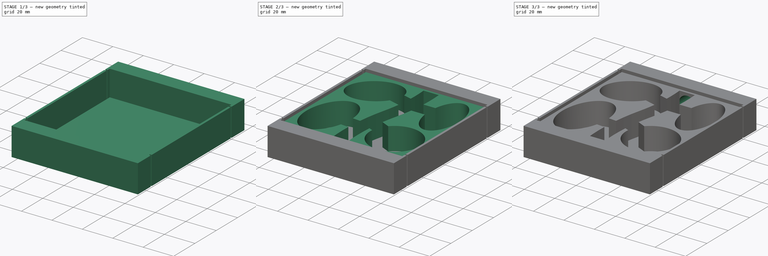
[diagram: build sequence overview — one tinted view per stage of 3, left to right]
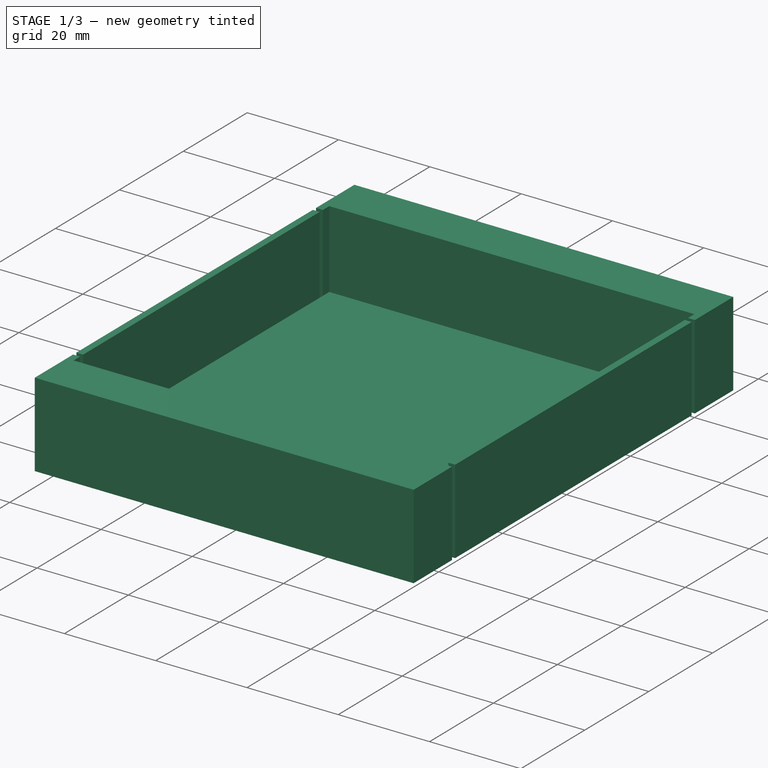
[diagram: stage 1 of 3 — iso view after this stage's code; geometry added in this stage tinted green]
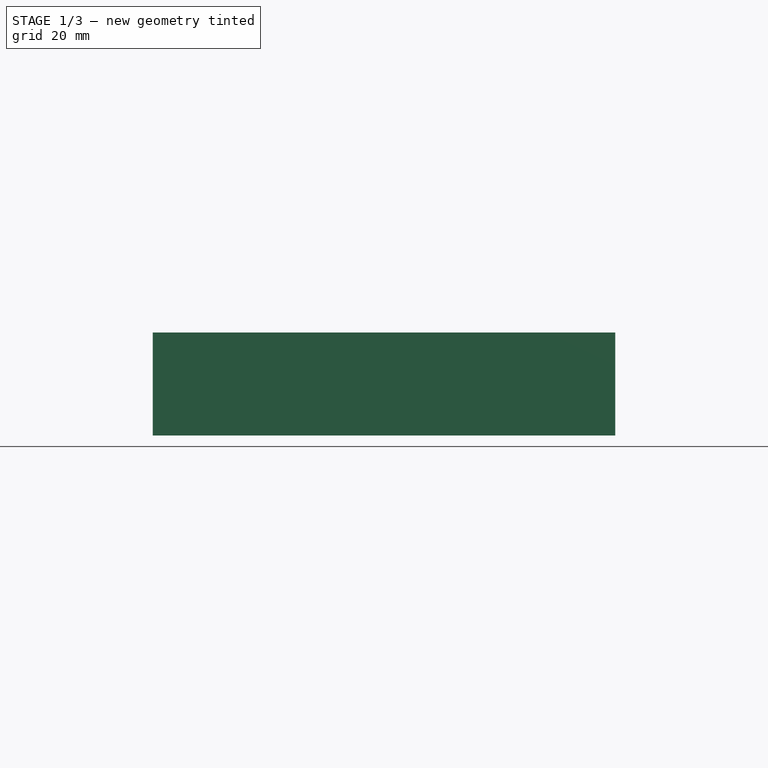
[diagram: stage 1 of 3 — front view after this stage's code; geometry added in this stage tinted green]
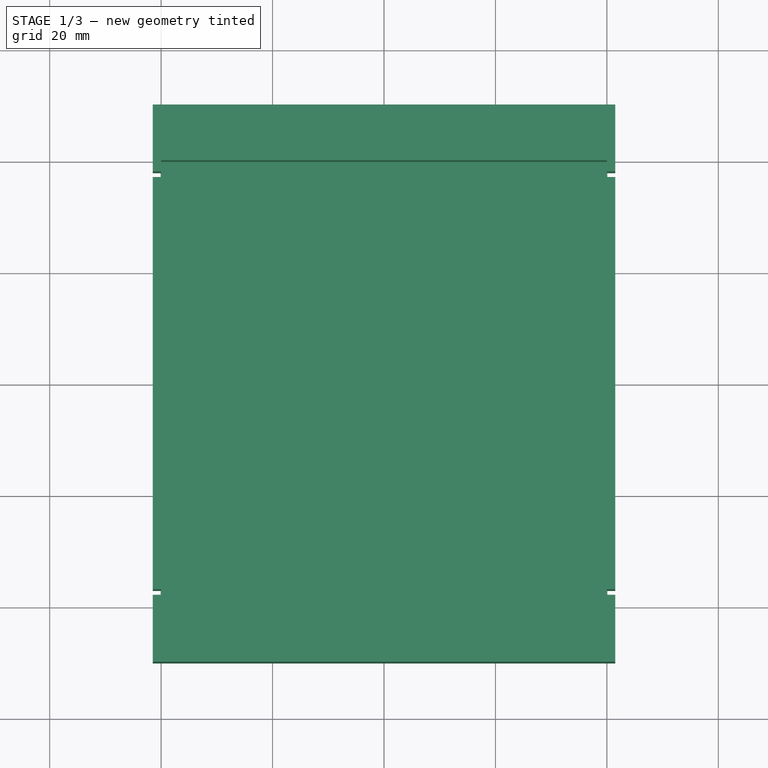
[diagram: stage 1 of 3 — top view after this stage's code; geometry added in this stage tinted green]
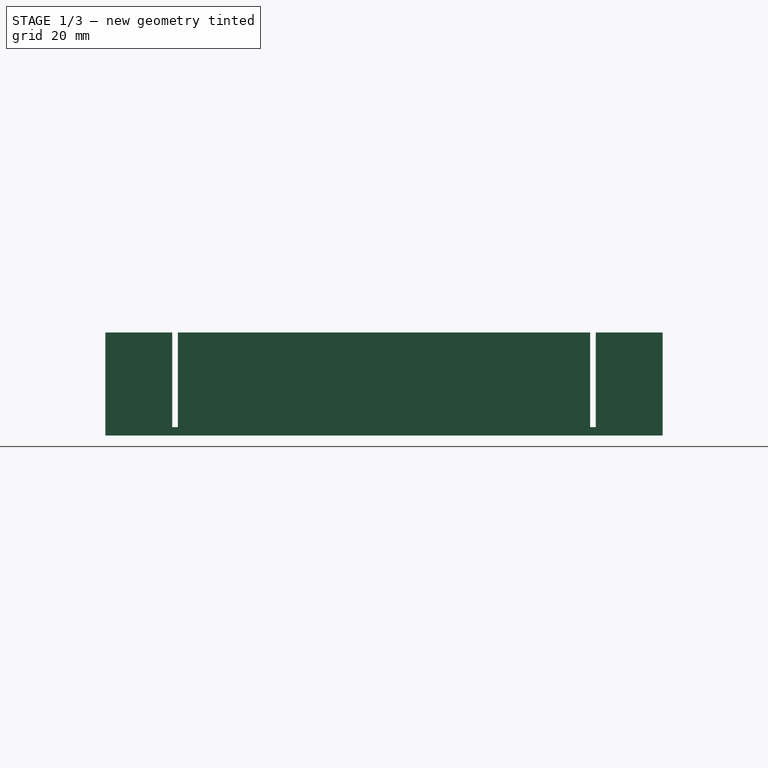
[diagram: stage 1 of 3 — right view after this stage's code; geometry added in this stage tinted green]
FCSTD DOCUMENT  (FreeCAD 0.17R13509 (Git))
Label: test
License: All rights reserved
LicenseURL: http://en.wikipedia.org/wiki/All_rights_reserved
objects: Sketcher::SketchObject×5, PartDesign::Pad×3, PartDesign::Hole×2, PartDesign::Body×1
note: 16 computed .brp shape members not serialized (recipe doc carries the construction recipe); baked Part::Feature solids carry a one-line shape summary decoded from their .brp

FEATURE [Sketcher::SketchObject] Sketch  label="Base"
  MapMode = 5
  Support = -> [XY_Plane]
  sketch-geometry (4):
    g0: LineSegment StartX=0 StartY=0 StartZ=0 EndX=80 EndY=0 EndZ=0
    g1: LineSegment StartX=80 StartY=0 StartZ=0 EndX=80 EndY=80 EndZ=0
    g2: LineSegment StartX=80 StartY=80 StartZ=0 EndX=0 EndY=80 EndZ=0
    g3: LineSegment StartX=0 StartY=80 StartZ=0 EndX=0 EndY=0 EndZ=0
  constraints (11):
    c: Coincident(g0,g1)
    c: Coincident(g1,g2)
    c: Coincident(g2,g3)
    c: Coincident(g3,g0)
    c: Horizontal(g0)
    c: Horizontal(g2)
    c: Vertical(g1)
    c: Vertical(g3)
    c: Coincident(g0,g-1)
    c: Distance(g1) = 80
    c: Distance(g2) = 80
FEATURE [PartDesign::Pad] Pad  label="Base pad"
  Length = 1.5
  Length2 = 100
  Profile = -> Sketch
  Type = 0
FEATURE [Sketcher::SketchObject] Sketch001  label="Outer"
  ExternalGeometry = -> [Sketch]
  MapMode = 5
  Support = -> [XY_Plane]
  sketch-geometry (38):
    g0: LineSegment [constr] StartX=0 StartY=40 StartZ=0 EndX=80 EndY=40 EndZ=0
    g1: LineSegment [constr] StartX=40 StartY=0 StartZ=0 EndX=40 EndY=80 EndZ=0
    g2: LineSegment StartX=40 StartY=0 StartZ=0 EndX=0 EndY=0 EndZ=0
    g3: LineSegment StartX=40 StartY=-10 StartZ=0 EndX=-1.5 EndY=-10 EndZ=0
    g4: LineSegment StartX=-1.5 StartY=-10 StartZ=0 EndX=-1.5 EndY=2 EndZ=0
    g5: LineSegment [constr] StartX=-1.5 StartY=2 StartZ=0 EndX=-1.5 EndY=3 EndZ=0
    g6: LineSegment StartX=-1.5 StartY=3 StartZ=0 EndX=-1.5 EndY=40 EndZ=0
    g7: LineSegment StartX=0 StartY=0 StartZ=0 EndX=0 EndY=2 EndZ=0
    g8: LineSegment StartX=0 StartY=2 StartZ=0 EndX=-1.5 EndY=2 EndZ=0
    g9: LineSegment StartX=-1.5 StartY=3 StartZ=0 EndX=0 EndY=3 EndZ=0
    g10: LineSegment StartX=0 StartY=3 StartZ=0 EndX=0 EndY=40 EndZ=0
    g11: LineSegment StartX=40 StartY=0 StartZ=0 EndX=80 EndY=0 EndZ=0
    g12: LineSegment StartX=40 StartY=-10 StartZ=0 EndX=81.5 EndY=-10 EndZ=0
    g13: LineSegment StartX=81.5 StartY=-10 StartZ=0 EndX=81.5 EndY=2 EndZ=0
    g14: LineSegment [constr] StartX=81.5 StartY=2 StartZ=0 EndX=81.5 EndY=3 EndZ=0
    g15: LineSegment StartX=81.5 StartY=3 StartZ=0 EndX=81.5 EndY=40 EndZ=0
    g16: LineSegment StartX=80 StartY=0 StartZ=0 EndX=80 EndY=2 EndZ=0
    g17: LineSegment StartX=80 StartY=2 StartZ=0 EndX=81.5 EndY=2 EndZ=0
    g18: LineSegment StartX=81.5 StartY=3 StartZ=0 EndX=80 EndY=3 EndZ=0
    g19: LineSegment StartX=80 StartY=3 StartZ=0 EndX=80 EndY=40 EndZ=0
    g20: LineSegment StartX=40 StartY=80 StartZ=0 EndX=0 EndY=80 EndZ=0
    g21: LineSegment StartX=40 StartY=90 StartZ=0 EndX=-1.5 EndY=90 EndZ=0
    g22: LineSegment StartX=-1.5 StartY=90 StartZ=0 EndX=-1.5 EndY=78 EndZ=0
    g23: LineSegment [constr] StartX=-1.5 StartY=78 StartZ=0 EndX=-1.5 EndY=77 EndZ=0
    g24: LineSegment StartX=-1.5 StartY=77 StartZ=0 EndX=-1.5 EndY=40 EndZ=0
    g25: LineSegment StartX=0 StartY=80 StartZ=0 EndX=0 EndY=78 EndZ=0
    g26: LineSegment StartX=0 StartY=78 StartZ=0 EndX=-1.5 EndY=78 EndZ=0
    g27: LineSegment StartX=-1.5 StartY=77 StartZ=0 EndX=0 EndY=77 EndZ=0
    g28: LineSegment StartX=0 StartY=77 StartZ=0 EndX=0 EndY=40 EndZ=0
    g29: LineSegment StartX=40 StartY=80 StartZ=0 EndX=80 EndY=80 EndZ=0
    g30: LineSegment StartX=40 StartY=90 StartZ=0 EndX=81.5 EndY=90 EndZ=0
    g31: LineSegment StartX=81.5 StartY=90 StartZ=0 EndX=81.5 EndY=78 EndZ=0
    g32: LineSegment [constr] StartX=81.5 StartY=78 StartZ=0 EndX=81.5 EndY=77 EndZ=0
    g33: LineSegment StartX=81.5 StartY=77 StartZ=0 EndX=81.5 EndY=40 EndZ=0
    g34: LineSegment StartX=80 StartY=80 StartZ=0 EndX=80 EndY=78 EndZ=0
    g35: LineSegment StartX=80 StartY=78 StartZ=0 EndX=81.5 EndY=78 EndZ=0
    g36: LineSegment StartX=81.5 StartY=77 StartZ=0 EndX=80 EndY=77 EndZ=0
    g37: LineSegment StartX=80 StartY=77 StartZ=0 EndX=80 EndY=40 EndZ=0
  constraints (77):
    c: PointOnObject(g0,g-2)
    c: Horizontal(g0)
    c: DistanceY(g-1,g0) = 40
    c: PointOnObject(g1,g-1)
    c: Vertical(g1)
    c: DistanceX(g-1,g1) = 40
    c: Coincident(g2,g1)
    c: Coincident(g2,g-1)
    c: Horizontal(g3)
    c: Vertical(g3,g1)
    c: DistanceY(g3,g1) = 10
    c: DistanceX(g3,g-1) = 1.5
    c: Vertical(g4)
    c: Coincident(g4,g5)
    c: Vertical(g5)
    c: Coincident(g5,g6)
    c: Vertical(g6)
    c: Coincident(g4,g3)
    c: DistanceY(g-1,g4) = 2
    c: Distance(g5) = 1
    c: PointOnObject(g6,g0)
    c: Coincident(g7,g-1)
    c: Coincident(g8,g7)
    c: Coincident(g8,g4)
    c: Horizontal(g8)
    c: Vertical(g7)
    c: Horizontal(g9)
    c: Coincident(g10,g9)
    c: Coincident(g9,g5)
    c: PointOnObject(g9,g-2)
    c: Coincident(g10,g0)
    c: PointOnObject(g1,g-3)
    c: Horizontal(g12)
    c: Vertical(g13)
    c: Coincident(g13,g14)
    c: Vertical(g14)
    c: Coincident(g14,g15)
    c: Vertical(g15)
    c: Coincident(g13,g12)
    c: Distance(g14) = 1
    c: Coincident(g17,g16)
    c: Coincident(g17,g13)
    c: Horizontal(g17)
    c: Vertical(g16)
    c: Horizontal(g18)
    c: Coincident(g19,g18)
    c: Coincident(g18,g14)
    c: Horizontal(g21)
    c: Vertical(g22)
    c: Coincident(g22,g23)
    c: Vertical(g23)
    c: Coincident(g23,g24)
    c: Vertical(g24)
    c: Coincident(g22,g21)
    c: Distance(g23) = 1
    c: Coincident(g26,g25)
    c: Coincident(g26,g22)
    c: Horizontal(g26)
    c: Vertical(g25)
    c: Horizontal(g27)
    c: Coincident(g28,g27)
    c: Coincident(g27,g23)
    c: Horizontal(g30)
    c: Vertical(g31)
    c: Coincident(g31,g32)
    c: Vertical(g32)
    c: Coincident(g32,g33)
    c: Vertical(g33)
    c: Coincident(g31,g30)
    c: Distance(g32) = 1
    c: Coincident(g35,g34)
    c: Coincident(g35,g31)
    c: Horizontal(g35)
    c: Vertical(g34)
    c: Horizontal(g36)
    c: Coincident(g37,g36)
    c: Coincident(g36,g32)
FEATURE [PartDesign::Pad] Pad001  label="Outer pad"
  BaseFeature = -> Pad
  Length = 18.5
  Length2 = 100
  Profile = -> Sketch001
  Type = 0
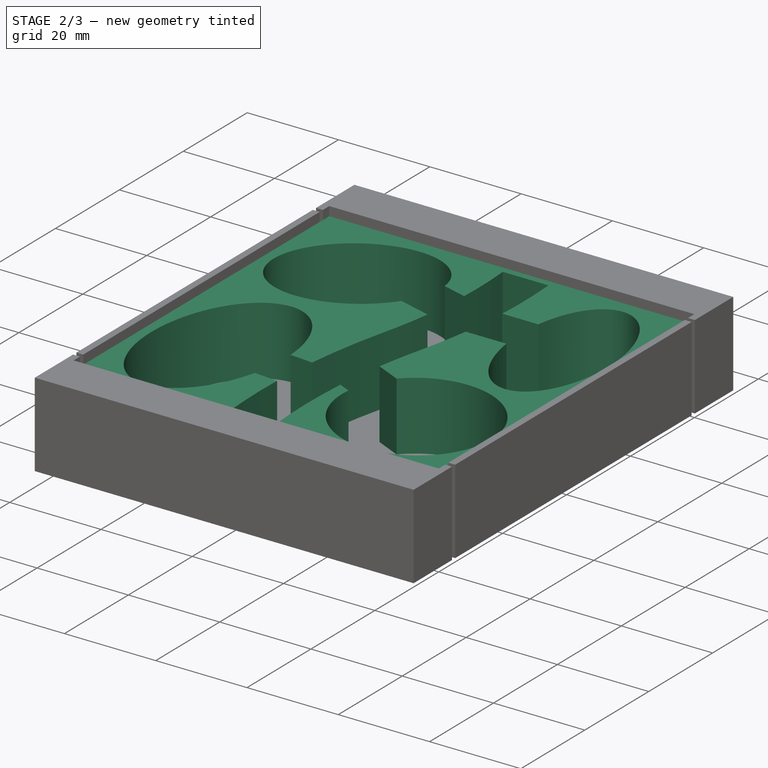
[diagram: stage 2 of 3 — iso view after this stage's code; geometry added in this stage tinted green]
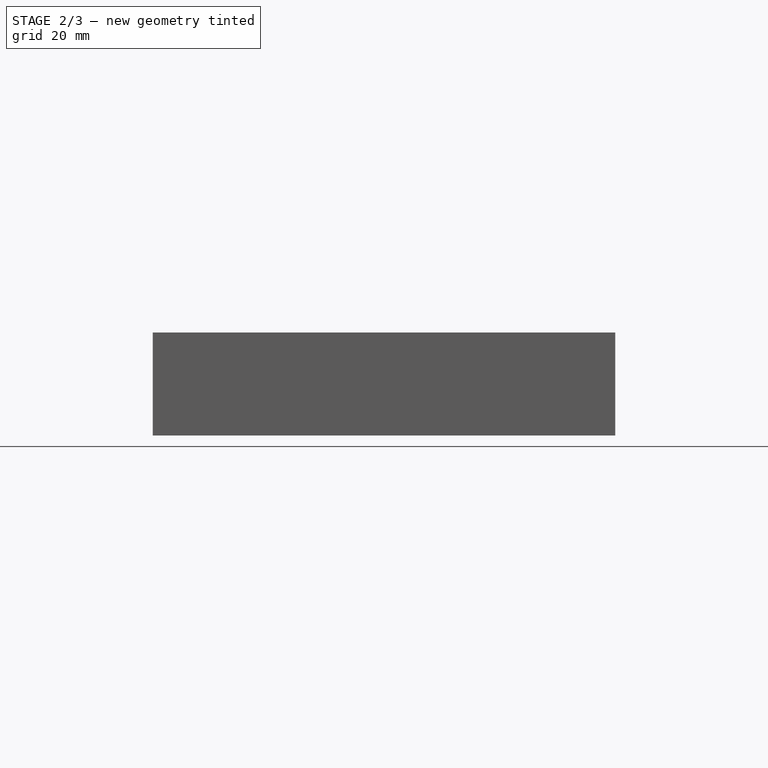
[diagram: stage 2 of 3 — front view after this stage's code; geometry added in this stage tinted green]
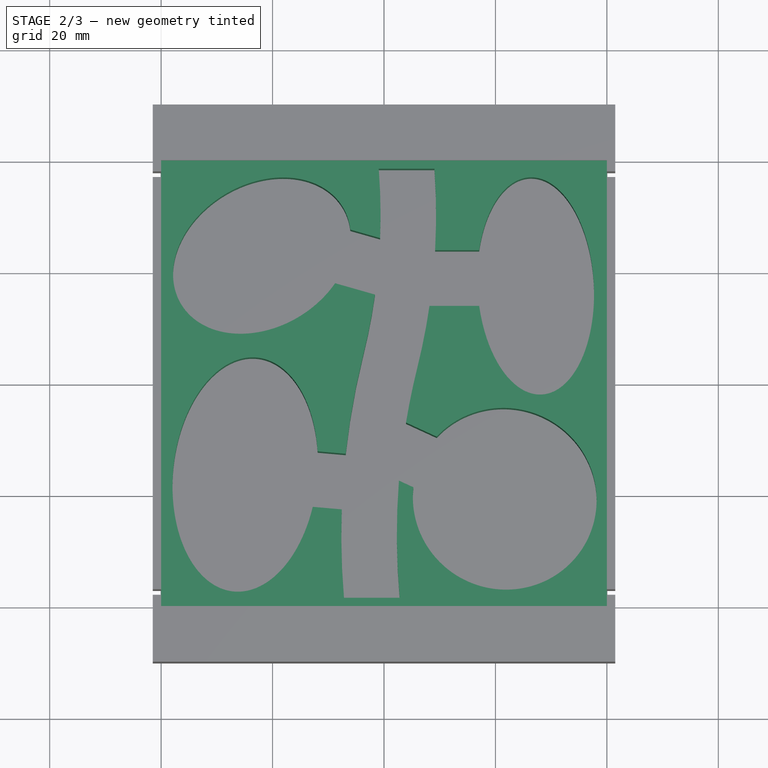
[diagram: stage 2 of 3 — top view after this stage's code; geometry added in this stage tinted green]
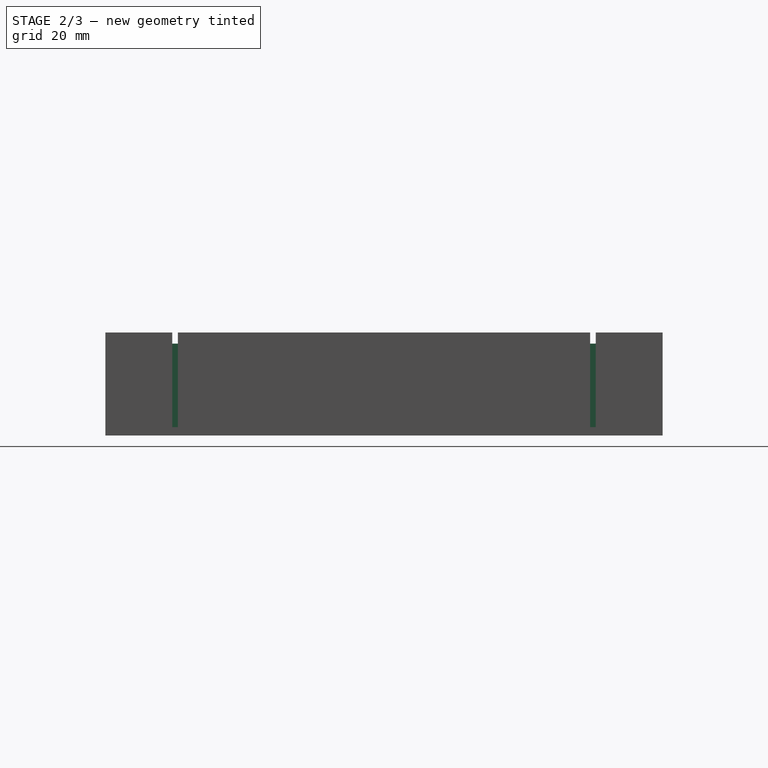
[diagram: stage 2 of 3 — right view after this stage's code; geometry added in this stage tinted green]
FEATURE [Sketcher::SketchObject] Sketch002  label="Chambers"
  ExternalGeometry = -> [Sketch]
  MapMode = 5
  Support = -> [XY_Plane]
  sketch-geometry (50):
    g0: LineSegment StartX=80 StartY=80 StartZ=0 EndX=0 EndY=80 EndZ=0
    g1: LineSegment StartX=0 StartY=80 StartZ=0 EndX=0 EndY=0 EndZ=0
    g2: LineSegment StartX=0 StartY=0 StartZ=0 EndX=80 EndY=0 EndZ=0
    g3: LineSegment StartX=80 StartY=0 StartZ=0 EndX=80 EndY=80 EndZ=0
    g4: LineSegment [constr] StartX=78.5 StartY=78.5 StartZ=0 EndX=1.5 EndY=78.5 EndZ=0
    g5: LineSegment [constr] StartX=1.5 StartY=78.5 StartZ=0 EndX=1.5 EndY=1.5 EndZ=0
    g6: LineSegment [constr] StartX=1.5 StartY=1.5 StartZ=0 EndX=78.5 EndY=1.5 EndZ=0
    g7: LineSegment [constr] StartX=78.5 StartY=1.5 StartZ=0 EndX=78.5 EndY=78.5 EndZ=0
    g8: LineSegment StartX=32.8161 StartY=1.5 StartZ=0 EndX=42.8161 EndY=1.5 EndZ=0
    g9: LineSegment StartX=39.057 StartY=78.5 StartZ=0 EndX=49.057 EndY=78.5 EndZ=0
    g10: ArcOfEllipse CenterX=18.0888 CenterY=62.9195 CenterZ=0 NormalX=0 NormalY=0 NormalZ=1 MajorRadius=16.9181 MinorRadius=12.8315 AngleXU=0.539164 StartAngle=5.95437 EndAngle=11.5375
    g11: LineSegment [constr] StartX=32.6068 StartY=71.6056 StartZ=0 EndX=3.5707 EndY=54.2335 EndZ=0
    g12: LineSegment [constr] StartX=11.5008 StartY=73.9308 StartZ=0 EndX=24.6767 EndY=51.9083 EndZ=0
    g13: GeomPoint X=27.5506 Y=68.5805 Z=0
    g14: GeomPoint X=8.6269 Y=57.2586 Z=0
    g15: ArcOfEllipse CenterX=67.2144 CenterY=57.4772 CenterZ=0 NormalX=0 NormalY=0 NormalZ=1 MajorRadius=19.5175 MinorRadius=10.4425 AngleXU=1.62734 StartAngle=1.72551 EndAngle=7.48846
    g16: LineSegment [constr] StartX=66.1114 StartY=76.9635 StartZ=0 EndX=68.3174 EndY=37.9908 EndZ=0
    g17: LineSegment [constr] StartX=56.7886 StartY=56.887 StartZ=0 EndX=77.6402 EndY=58.0673 EndZ=0
    g18: GeomPoint X=66.2825 Y=73.9398 Z=0
    g19: GeomPoint X=68.1462 Y=41.0145 Z=0
    g20: ArcOfEllipse CenterX=15.0947 CenterY=23.6275 CenterZ=0 NormalX=0 NormalY=0 NormalZ=1 MajorRadius=21.0975 MinorRadius=12.945 AngleXU=-1.67187 StartAngle=1.83216 EndAngle=7.63673
    g21: LineSegment [constr] StartX=12.9659 StartY=2.63763 StartZ=0 EndX=17.2234 EndY=44.6173 EndZ=0
    g22: LineSegment [constr] StartX=27.9736 StartY=22.3213 StartZ=0 EndX=2.2157 EndY=24.9336 EndZ=0
    g23: GeomPoint X=13.4137 Y=7.05322 Z=0
    g24: GeomPoint X=16.7756 Y=40.2017 Z=0
    g25: ArcOfEllipse CenterX=61.6668 CenterY=19.2725 CenterZ=0 NormalX=0 NormalY=0 NormalZ=1 MajorRadius=16.5518 MinorRadius=16.2458 AngleXU=-0.477885 StartAngle=3.50021 EndAngle=9.15772
    g26: LineSegment [constr] StartX=76.3643 StartY=11.6603 StartZ=0 EndX=46.9693 EndY=26.8847 EndZ=0
    g27: LineSegment [constr] StartX=69.1383 StartY=33.6983 StartZ=0 EndX=54.1953 EndY=4.84669 EndZ=0
    g28: GeomPoint X=64.4799 Y=17.8155 Z=0
    g29: GeomPoint X=58.8537 Y=20.7294 Z=0
    g30: LineSegment [constr] StartX=31.2208 StartY=57.9659 StartZ=0 EndX=33.9564 EndY=67.5845 EndZ=0
    g31: LineSegment StartX=33.9564 StartY=67.5845 StartZ=0 EndX=39.2963 EndY=66.0657 EndZ=0
    g32: LineSegment StartX=31.2208 StartY=57.9659 StartZ=0 EndX=38.382 EndY=55.9292 EndZ=0
    g33: LineSegment [constr] StartX=57.0831 StartY=63.8912 StartZ=0 EndX=57.0831 EndY=53.8912 EndZ=0
    g34: LineSegment StartX=57.0831 StartY=63.8912 StartZ=0 EndX=49.1733 EndY=63.8912 EndZ=0
    g35: LineSegment StartX=57.0831 StartY=53.8912 StartZ=0 EndX=48.1633 EndY=53.8912 EndZ=0
    g36: LineSegment [constr] StartX=28.0863 StartY=27.7895 StartZ=0 EndX=27.2121 EndY=17.8278 EndZ=0
    g37: LineSegment StartX=28.0863 StartY=27.7895 StartZ=0 EndX=33.1268 EndY=27.3471 EndZ=0
    g38: LineSegment StartX=27.2121 StartY=17.8278 StartZ=0 EndX=32.4163 EndY=17.3711 EndZ=0
    g39: LineSegment [constr] StartX=45.282 StartY=21.3372 StartZ=0 EndX=49.4619 EndY=30.4217 EndZ=0
    g40: LineSegment StartX=45.282 StartY=21.3372 StartZ=0 EndX=42.6808 EndY=22.5341 EndZ=0
    g41: LineSegment StartX=49.4619 StartY=30.4217 StartZ=0 EndX=43.951 EndY=32.9574 EndZ=0
    g42: ArcOfCircle CenterX=-64.2231 CenterY=70.2934 CenterZ=0 NormalX=0 NormalY=0 NormalZ=1 AngleXU=0 Radius=103.606 StartAngle=6.24237 EndAngle=6.36248
    g43: ArcOfCircle CenterX=-64.2231 CenterY=70.2934 CenterZ=0 NormalX=0 NormalY=0 NormalZ=1 AngleXU=0 Radius=103.606 StartAngle=6.03932 EndAngle=6.14409
    g44: ArcOfCircle CenterX=-64.2231 CenterY=70.2934 CenterZ=0 NormalX=0 NormalY=0 NormalZ=1 AngleXU=0 Radius=113.577 StartAngle=6.22679 EndAngle=6.3555
    g45: ArcOfCircle CenterX=166.783 CenterY=12.8147 CenterZ=0 NormalX=0 NormalY=0 NormalZ=1 AngleXU=0 Radius=134.444 StartAngle=2.89773 EndAngle=3.03329
    g46: ArcOfCircle CenterX=166.783 CenterY=12.8147 CenterZ=0 NormalX=0 NormalY=0 NormalZ=1 AngleXU=0 Radius=124.482 StartAngle=3.06344 EndAngle=3.23261
    g47: ArcOfCircle CenterX=166.783 CenterY=12.8147 CenterZ=0 NormalX=0 NormalY=0 NormalZ=1 AngleXU=0 Radius=134.444 StartAngle=3.1077 EndAngle=3.22585
    g48: ArcOfCircle CenterX=-64.2231 CenterY=70.2934 CenterZ=0 NormalX=0 NormalY=0 NormalZ=1 AngleXU=0 Radius=113.577 StartAngle=6.03932 EndAngle=6.13826
    g49: ArcOfCircle CenterX=166.783 CenterY=12.8147 CenterZ=0 NormalX=0 NormalY=0 NormalZ=1 AngleXU=0 Radius=124.472 StartAngle=2.89773 EndAngle=2.97905
  constraints (84):
    c: Coincident(g0,g1)
    c: Coincident(g1,g2)
    c: Coincident(g2,g3)
    c: Coincident(g3,g0)
    c: Horizontal(g0)
    c: Horizontal(g2)
    c: Vertical(g1)
    c: Vertical(g3)
    c: Coincident(g0,g-4)
    c: Coincident(g1,g-1)
    c: Coincident(g4,g5)
    c: Coincident(g5,g6)
    c: Coincident(g6,g7)
    c: Coincident(g7,g4)
    c: Horizontal(g4)
    c: Horizontal(g6)
    c: Vertical(g5)
    c: Vertical(g7)
    c: DistanceX(g-1,g5) = 1.5
    c: DistanceY(g-1,g5) = 1.5
    c: PointOnObject(g8,g6)
    c: PointOnObject(g8,g6)
    c: Distance(g8) = 10
    c: PointOnObject(g9,g4)
    c: PointOnObject(g9,g4)
    c: Equal(g9,g8)
    c: InternalAlignment(g11-g14 -> g10) x4
    c: InternalAlignment(g16-g19 -> g15) x4
    c: InternalAlignment(g21-g24 -> g20) x4
    c: InternalAlignment(g26-g29 -> g25) x4
    c: Coincident(g30,g10)
    c: Coincident(g30,g10)
    c: Equal(g9,g30)
    c: Coincident(g31,g10)
    c: Coincident(g32,g10)
    c: Parallel(g32,g31)
    c: Perpendicular(g32,g30)
    c: Coincident(g33,g15)
    c: Coincident(g33,g15)
    c: Coincident(g34,g15)
    c: Coincident(g35,g15)
    c: Horizontal(g35)
    c: Parallel(g35,g34)
    c: Perpendicular(g33,g34)
    c: Coincident(g36,g20)
    c: Coincident(g36,g20)
    c: Equal(g36,g8)
    c: Coincident(g37,g20)
    c: Coincident(g38,g20)
    c: Parallel(g38,g37)
    c: Perpendicular(g38,g36)
    c: Coincident(g39,g25)
    c: Coincident(g39,g25)
    c: Equal(g39,g8)
    c: Coincident(g40,g25)
    c: Perpendicular(g40,g39)
    c: Coincident(g41,g25)
    c: Parallel(g40,g41)
    c: Coincident(g42,g9)
    c: Coincident(g42,g31)
    c: Coincident(g43,g32)
    c: Coincident(g44,g9)
    c: Coincident(g44,g34)
    c: Coincident(g45,g37)
    c: Equal(g33,g9)
    c: Coincident(g46,g8)
    c: Coincident(g46,g40)
    c: Coincident(g47,g8)
    c: Coincident(g47,g38)
    c: Tangent(g45,g43) = 1.5708
    c: Equal(g43,g42)
    c: Coincident(g44,g43)
    c: Coincident(g43,g42)
    c: Coincident(g46,g45)
    c: Coincident(g47,g45)
    c: Equal(g45,g47)
    c: Coincident(g48,g42)
    c: Coincident(g48,g35)
    c: Equal(g48,g44)
    c: Coincident(g49,g45)
    c: Coincident(g49,g41)
    c: Tangent(g49,g48) = 1.5708
    c: DistanceX(g-1,g6) = 78.5
    c: DistanceY(g-1,g4) = 78.5
FEATURE [PartDesign::Pad] Pad002  label="Chambers Pad"
  BaseFeature = -> Pad001
  Length = 16.5
  Length2 = 100
  Profile = -> Sketch002
  Type = 0
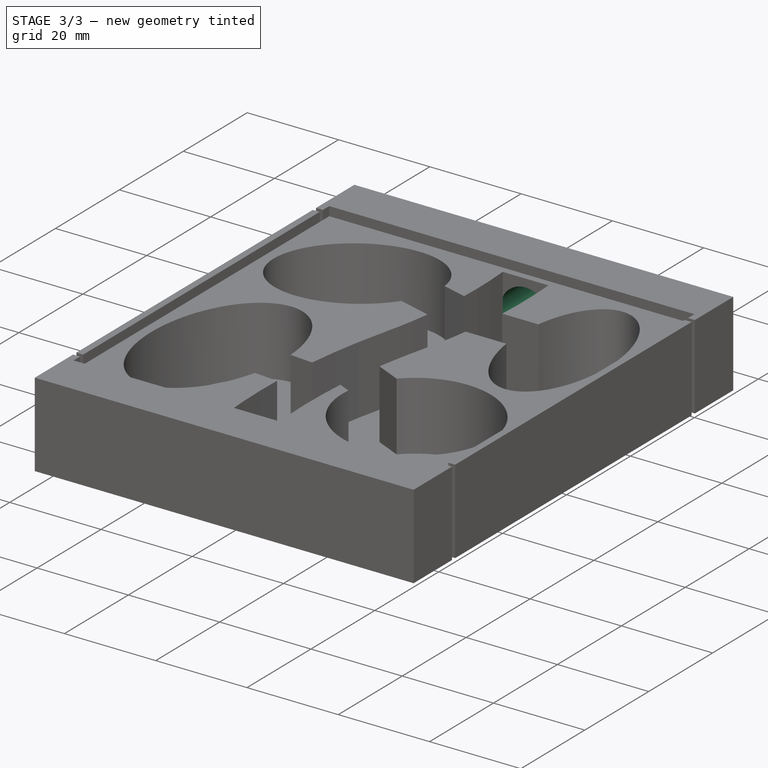
[diagram: stage 3 of 3 — iso view after this stage's code; geometry added in this stage tinted green]
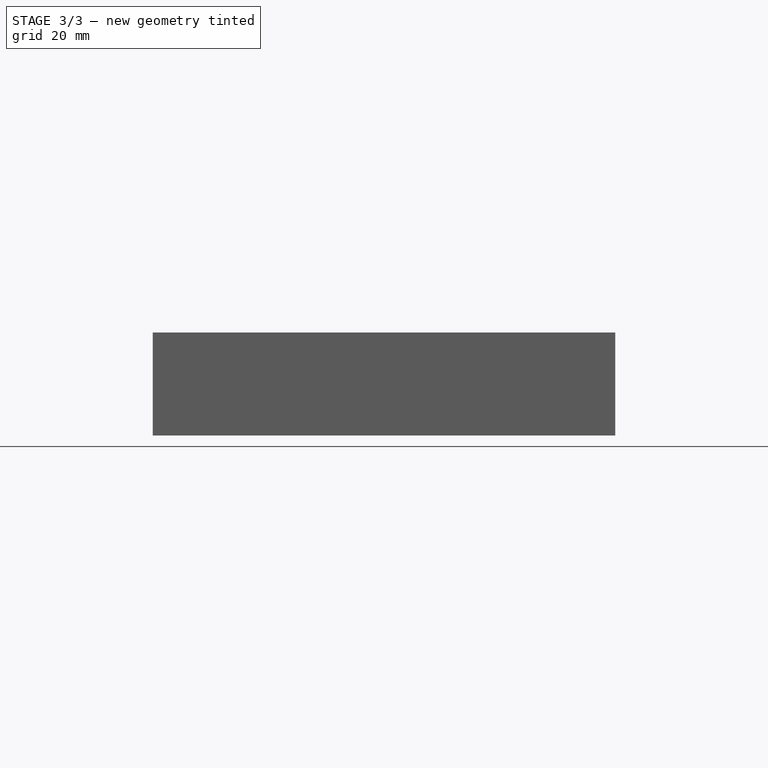
[diagram: stage 3 of 3 — front view after this stage's code; geometry added in this stage tinted green]
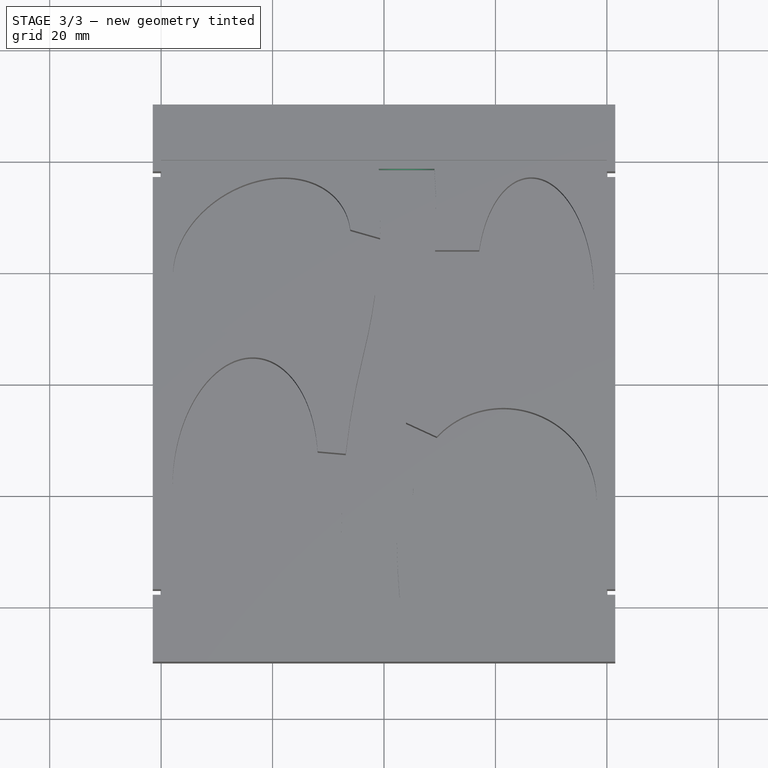
[diagram: stage 3 of 3 — top view after this stage's code; geometry added in this stage tinted green]
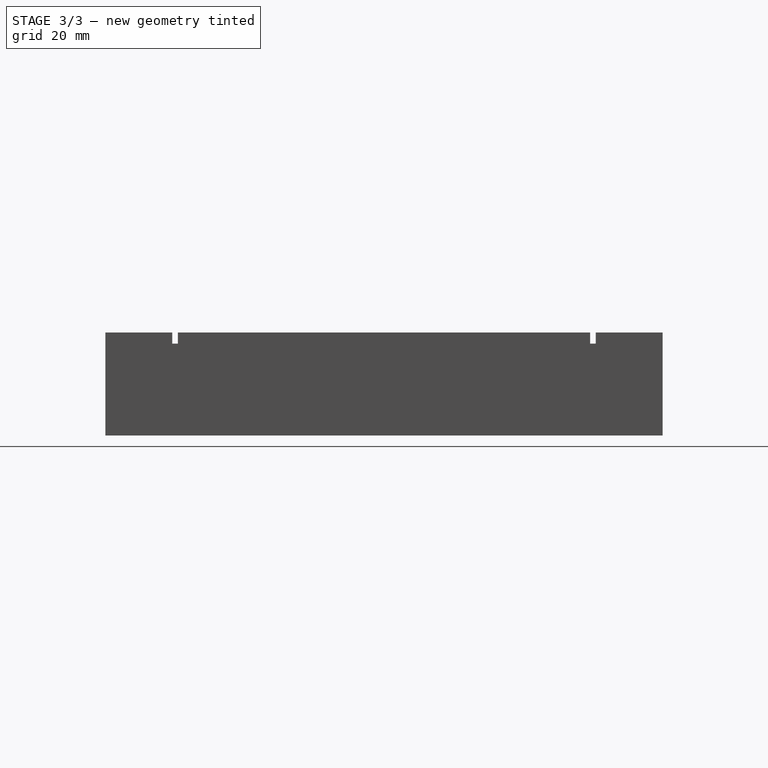
[diagram: stage 3 of 3 — right view after this stage's code; geometry added in this stage tinted green]
FEATURE [Sketcher::SketchObject] Sketch003  label="Hole 1 pos"
  ExternalGeometry = -> [Sketch002,Pad002]
  MapMode = 45
  Placement = pos=(40,90,9.25) rot=(0.57735,0.57735,0.57735;4.18879rad)
  Support = -> [Pad002]
  sketch-geometry (5):
    g0: GeomPoint X=0 Y=4.05705 Z=0
    g1: Circle CenterX=0 CenterY=4.05705 CenterZ=0 NormalX=0 NormalY=0 NormalZ=1 AngleXU=0 Radius=2.47247
    g2: LineSegment [constr] StartX=0 StartY=4.05705 StartZ=0 EndX=-9.25 EndY=4.05705 EndZ=0
    g3: LineSegment [constr] StartX=-9.25 StartY=-0.942951 StartZ=0 EndX=-9.25 EndY=4.05705 EndZ=0
    g4: LineSegment [constr] StartX=-9.25 StartY=4.05705 StartZ=0 EndX=-9.25 EndY=9.05705 EndZ=0
  constraints (10):
    c: PointOnObject(g0,g-2)
    c: Coincident(g1,g0)
    c: Coincident(g2,g0)
    c: PointOnObject(g2,g-3)
    c: Horizontal(g2)
    c: Coincident(g3,g-3)
    c: Coincident(g3,g2)
    c: Coincident(g4,g2)
    c: Coincident(g4,g-3)
    c: Equal(g3,g4)
FEATURE [PartDesign::Hole] Hole  label="Hole 1"
  BaseFeature = -> Pad002
  Depth = 11.5
  DepthType = 0
  Diameter = 11
  DrillPoint = 0
  DrillPointAngle = 118
  HoleCutCountersinkAngle = 90
  HoleCutDepth = 0
  HoleCutDiameter = 0
  HoleCutType = 0
  ModelActualThread = false
  Profile = -> Sketch003
  Tapered = false
  TaperedAngle = 90
  ThreadAngle = 0
  ThreadClass = 0
  ThreadCutOffInner = 0
  ThreadCutOffOuter = 0
  ThreadDirection = 0
  ThreadFit = 0
  ThreadPitch = 0
  ThreadSize = 0
  ThreadType = 0
  Threaded = false
FEATURE [Sketcher::SketchObject] Sketch004  label="Hole 2 pos"
  ExternalGeometry = -> [Hole]
  MapMode = 45
  Placement = pos=(40,-10,9.25) rot=(0.57735,0.57735,0.57735;4.18879rad)
  Support = -> [Hole]
  sketch-geometry (4):
    g0: Circle CenterX=0 CenterY=-2.18395 CenterZ=0 NormalX=0 NormalY=0 NormalZ=1 AngleXU=0 Radius=2.43898
    g1: LineSegment [constr] StartX=0 StartY=-2.18395 StartZ=0 EndX=7.25 EndY=-2.18395 EndZ=0
    g2: LineSegment [constr] StartX=7.25 StartY=2.81605 StartZ=0 EndX=7.25 EndY=-2.18395 EndZ=0
    g3: LineSegment [constr] StartX=7.25 StartY=-2.18395 StartZ=0 EndX=7.25 EndY=-7.18395 EndZ=0
  constraints (9):
    c: PointOnObject(g0,g-2)
    c: PointOnObject(g1,g-3)
    c: Horizontal(g1)
    c: Coincident(g0,g1)
    c: Coincident(g2,g-3)
    c: Coincident(g2,g1)
    c: Coincident(g3,g1)
    c: Coincident(g3,g-3)
    c: Equal(g2,g3)
FEATURE [PartDesign::Hole] Hole001
  BaseFeature = -> Hole
  Depth = 11.5
  DepthType = 0
  Diameter = 11
  DrillPoint = 0
  DrillPointAngle = 118
  HoleCutCountersinkAngle = 90
  HoleCutDepth = 0
  HoleCutDiameter = 0
  HoleCutType = 0
  ModelActualThread = false
  Profile = -> Sketch004
  Tapered = false
  TaperedAngle = 90
  ThreadAngle = 0
  ThreadClass = 0
  ThreadCutOffInner = 0
  ThreadCutOffOuter = 0
  ThreadDirection = 0
  ThreadFit = 0
  ThreadPitch = 0
  ThreadSize = 0
  ThreadType = 0
  Threaded = false
FEATURE [PartDesign::Body] Body
  Group = -> [Sketch,Pad,Sketch001,Pad001,Sketch002,Pad002,Sketch003,Hole,Sketch004,Hole001]
  Origin = -> Origin
  Tip = -> Hole001
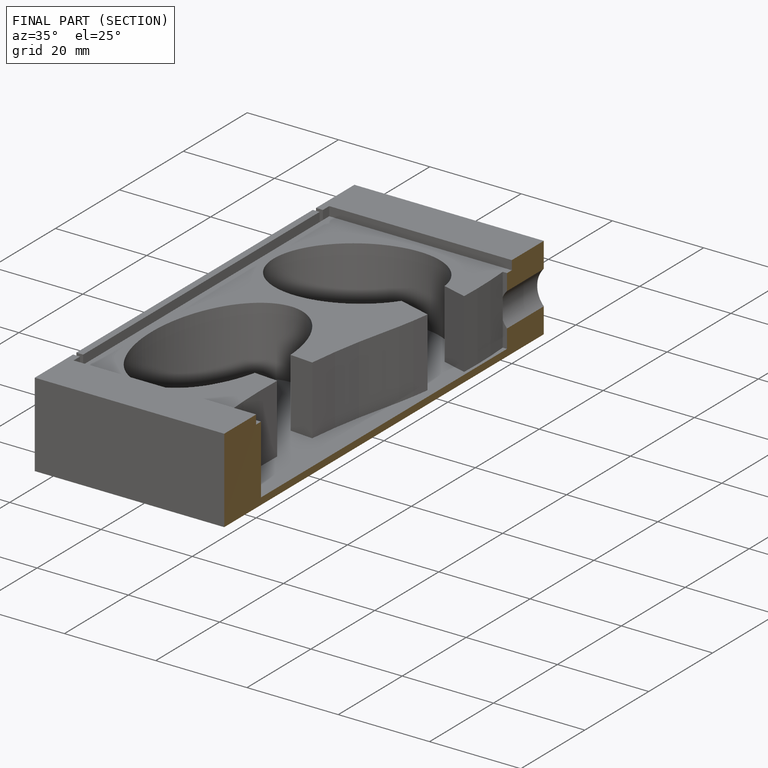
[diagram: finished part — half-section view (interior)]
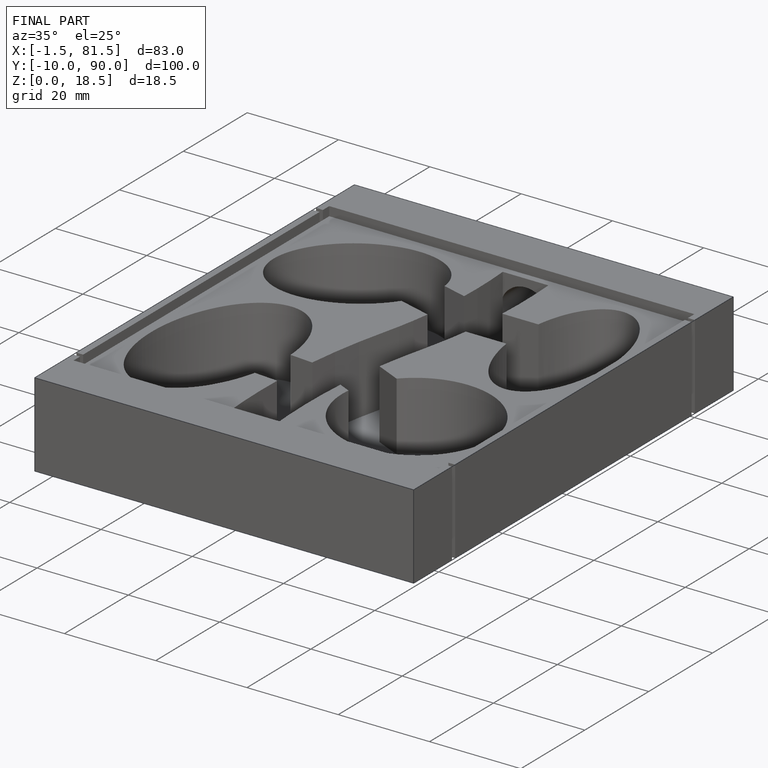
[diagram: finished part — iso view with bounding-box wireframe]
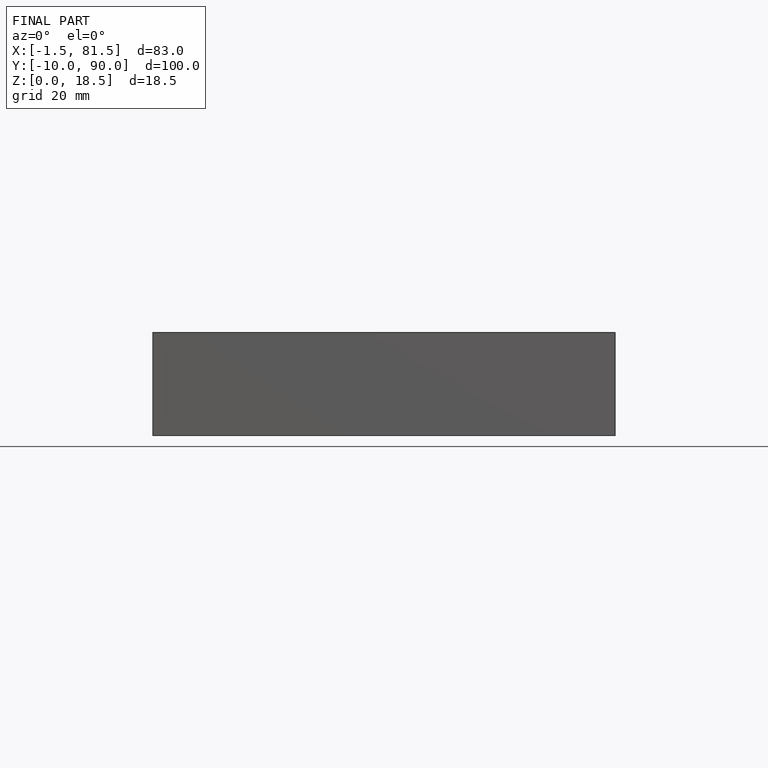
[diagram: finished part — front view with bounding-box wireframe]
